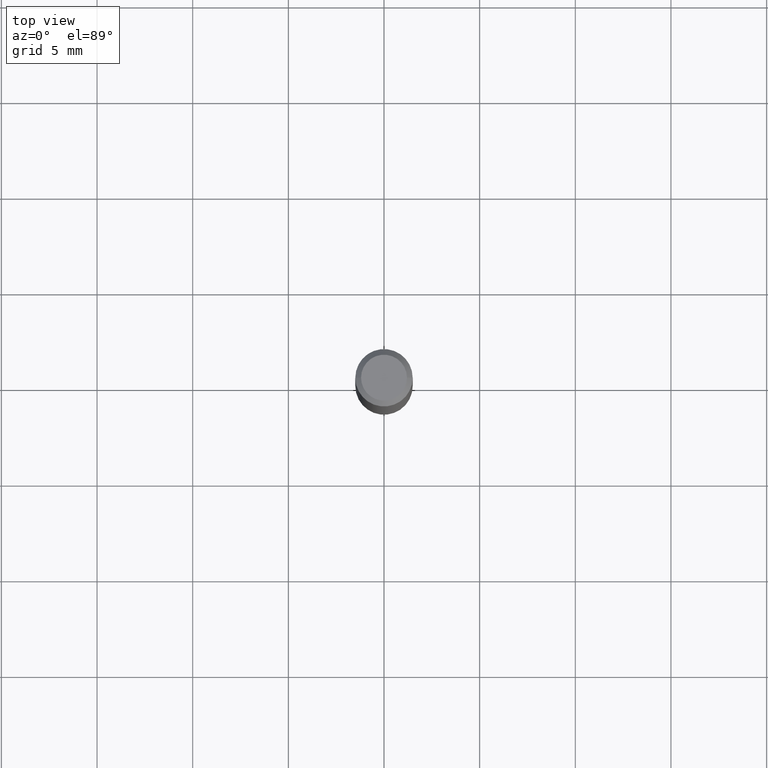
[diagram: clean part render]
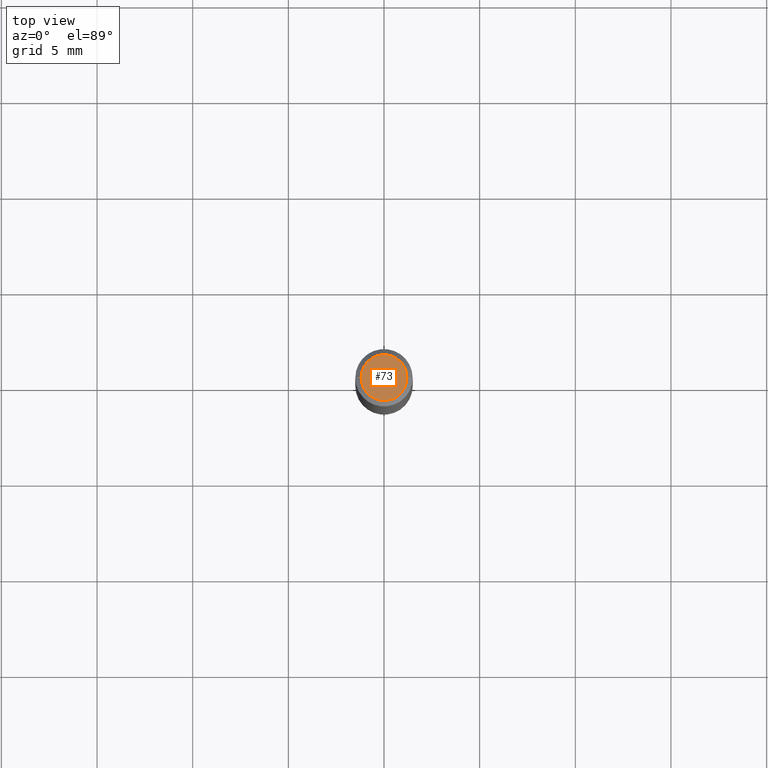
[diagram: same view with one face highlighted and labeled with its STEP entity id]
A machine part, top view. The second image highlights one B-rep face of the part: STEP entity #73.
In plain terms, the highlighted planar face has unit normal (0, -0, -1).
Its self-contained STEP definition (entity closure, byte-faithful):
#13 = PLANE ( 'NONE',  #422 ) ;
#17 = DIRECTION ( 'NONE',  ( 1.000000000000000000, -6.982962677686266711E-15, 4.876185090822587894E-29 ) ) ;
#26 = VERTEX_POINT ( 'NONE', #106 ) ;
#34 = EDGE_LOOP ( 'NONE', ( #451, #173 ) ) ;
#73 = ADVANCED_FACE ( 'NONE', ( #78 ), #13, .F. ) ;
#78 = FACE_OUTER_BOUND ( 'NONE', #34, .T. ) ;
#80 = DIRECTION ( 'NONE',  ( 2.438088387897960049E-29, -3.491481338843145188E-15, -1.000000000000000000 ) ) ;
#106 = CARTESIAN_POINT ( 'NONE',  ( -0.04724000000000000421, 3.504923541997677355E-16, -3.380025165670481712E-19 ) ) ;
#173 = ORIENTED_EDGE ( 'NONE', *, *, #470, .T. ) ;
#182 = AXIS2_PLACEMENT_3D ( 'NONE', #450, #295, #298 ) ;
#212 = VERTEX_POINT ( 'NONE', #266 ) ;
#266 = CARTESIAN_POINT ( 'NONE',  ( 0.04724000000000000421, -3.852183633974369345E-16, -3.380025165621689721E-19 ) ) ;
#279 = CIRCLE ( 'NONE', #182, 0.04724000000000000421 ) ;
#280 = CARTESIAN_POINT ( 'NONE',  ( 4.132873053354867254E-48, -5.900647395337818946E-34, -1.690012582823346072E-19 ) ) ;
#289 = CIRCLE ( 'NONE', #406, 0.04724000000000000421 ) ;
#292 = DIRECTION ( 'NONE',  ( -2.445468806185136597E-29, 3.491481338843145583E-15, 1.000000000000000000 ) ) ;
#295 = DIRECTION ( 'NONE',  ( -2.445468806185136597E-29, 3.491481338843145583E-15, 1.000000000000000000 ) ) ;
#298 = DIRECTION ( 'NONE',  ( 1.000000000000000000, -6.982962677686266711E-15, 4.876185090822587894E-29 ) ) ;
#303 = EDGE_CURVE ( 'NONE', #26, #212, #279, .T. ) ;
#344 = DIRECTION ( 'NONE',  ( -1.000000000000000000, 6.982962677686265922E-15, -4.876176775795935793E-29 ) ) ;
#359 = CARTESIAN_POINT ( 'NONE',  ( 8.265746106709734507E-48, -1.180129479067563789E-33, -3.380025165646692144E-19 ) ) ;
#406 = AXIS2_PLACEMENT_3D ( 'NONE', #359, #292, #17 ) ;
#422 = AXIS2_PLACEMENT_3D ( 'NONE', #280, #80, #344 ) ;
#450 = CARTESIAN_POINT ( 'NONE',  ( 8.265746106709734507E-48, -1.180129479067563789E-33, -3.380025165646692144E-19 ) ) ;
#451 = ORIENTED_EDGE ( 'NONE', *, *, #303, .T. ) ;
#470 = EDGE_CURVE ( 'NONE', #212, #26, #289, .T. ) ;